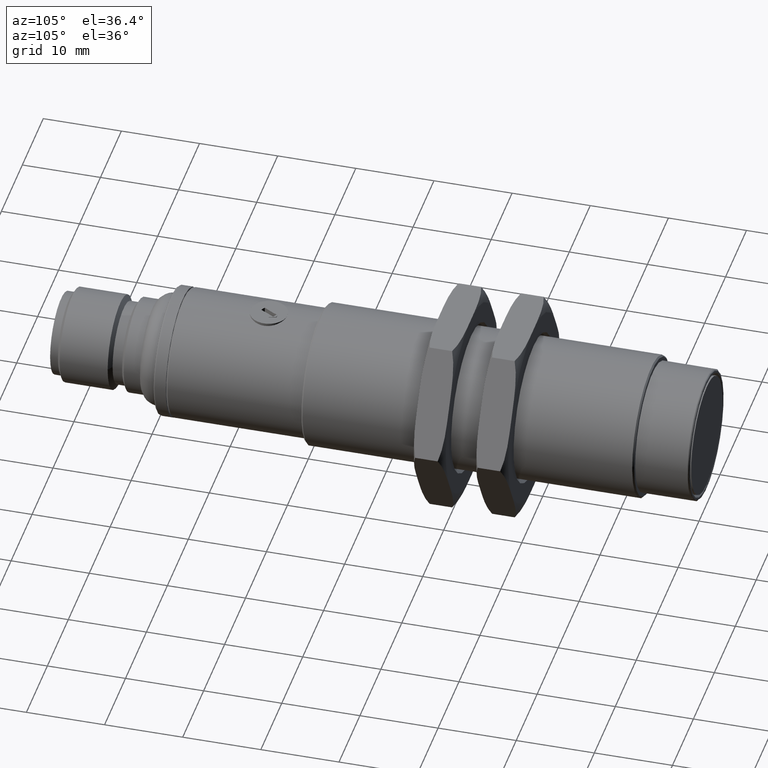
[diagram: clean part render]
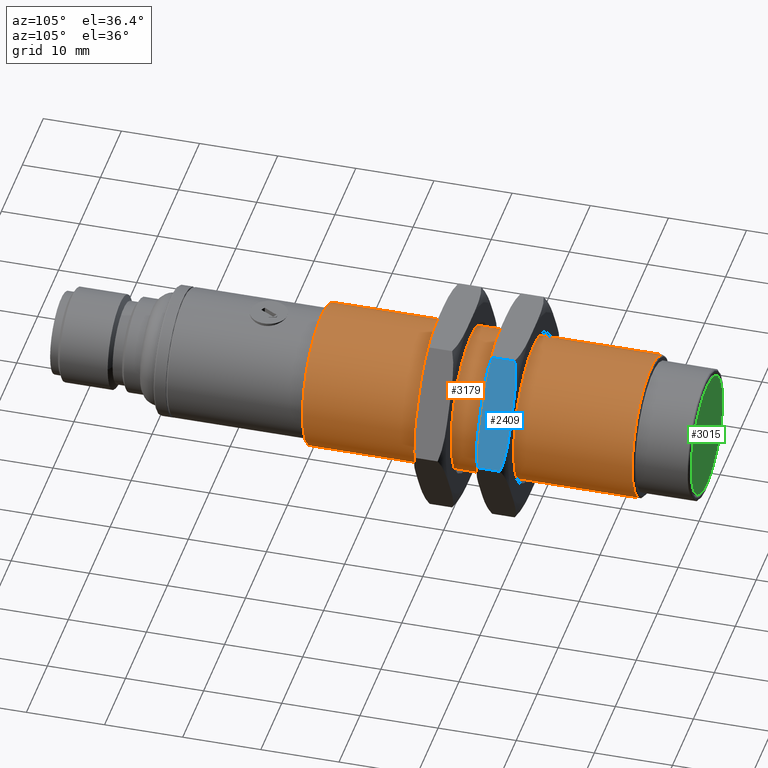
[diagram: same view with three faces highlighted in distinct colors, each labeled with its STEP entity id]
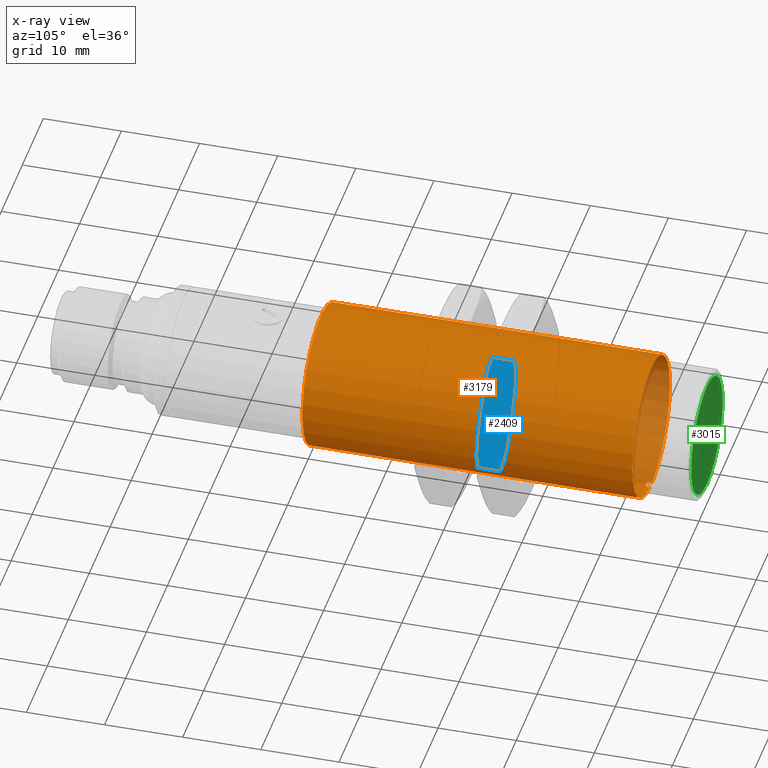
[diagram: x-ray of the same camera — body ghosted, the three highlighted faces saturated]
A machine part, auxiliary view with three faces highlighted in distinct colors.
The next image is the same camera in x-ray (body ghosted, the three faces saturated) — at least one of them is partly hidden behind the body in this view.
Their STEP definitions:

[orange] entity #3179 — the highlighted cylindrical surface (bore or boss wall) has radius 9 mm, axis along (0, -1, 0).
#22 = CARTESIAN_POINT ( 'NONE',  ( 0.008981041141015522547, 1.307729193887731345, -0.3576491620688194706 ) ) ;
#68 = CARTESIAN_POINT ( 'NONE',  ( 0.01968503937007874682, 1.323563115017905023, -0.3572159464473742552 ) ) ;
#89 = CARTESIAN_POINT ( 'NONE',  ( -0.01158786578451971409, 1.309187083590066969, -0.3575811814271229183 ) ) ;
#216 = ORIENTED_EDGE ( 'NONE', *, *, #2346, .F. ) ;
#267 = DIRECTION ( 'NONE',  ( 0.000000000000000000, 1.000000000000000000, 0.000000000000000000 ) ) ;
#276 = EDGE_LOOP ( 'NONE', ( #1751, #216, #2943, #1070 ) ) ;
#303 = CARTESIAN_POINT ( 'NONE',  ( -0.01942211342533483112, 1.321318941801316926, -0.3572387938557151643 ) ) ;
#343 = CARTESIAN_POINT ( 'NONE',  ( -0.01622819136906780702, 1.313819820143970807, -0.3573990476378300363 ) ) ;
#391 = CARTESIAN_POINT ( 'NONE',  ( -0.01968503937007873988, 1.325434263620417497, -0.3572159464473751989 ) ) ;
#405 = CARTESIAN_POINT ( 'NONE',  ( -0.004148976533887337517, 1.306159306171633672, -0.3577347956214805280 ) ) ;
#467 = AXIS2_PLACEMENT_3D ( 'NONE', #2447, #1495, #3175 ) ;
#471 = CARTESIAN_POINT ( 'NONE',  ( 0.01942189134938138162, 1.321319541225800531, -0.3572387573055963439 ) ) ;
#492 = CARTESIAN_POINT ( 'NONE',  ( -0.01968503937007873988, 1.333308279368448979, -0.3572159464473751989 ) ) ;
#522 = EDGE_LOOP ( 'NONE', ( #1835 ) ) ;
#555 = LINE ( 'NONE', #1933, #4444 ) ;
#556 = VERTEX_POINT ( 'NONE', #1859 ) ;
#668 = LINE ( 'NONE', #3769, #4049 ) ;
#692 = CIRCLE ( 'NONE', #980, 0.3543307086614173040 ) ;
#702 = CARTESIAN_POINT ( 'NONE',  ( -0.01968503937007874682, 1.323563663957743719, -0.3572159464473742552 ) ) ;
#843 = CARTESIAN_POINT ( 'NONE',  ( 0.000000000000000000, -1.024959437166984122, -0.003432467006205425306 ) ) ;
#865 = FACE_OUTER_BOUND ( 'NONE', #522, .T. ) ;
#928 = CARTESIAN_POINT ( 'NONE',  ( -0.01968503937007873988, 1.325434263620417497, -0.3572159464473751989 ) ) ;
#980 = AXIS2_PLACEMENT_3D ( 'NONE', #2911, #4229, #2179 ) ;
#1070 = ORIENTED_EDGE ( 'NONE', *, *, #2872, .T. ) ;
#1074 = CARTESIAN_POINT ( 'NONE',  ( 0.001991162446508606444, 1.305843505392969561, -0.3577560217940894960 ) ) ;
#1086 = CARTESIAN_POINT ( 'NONE',  ( 0.000000000000000000, -0.3281090434661976807, -0.3577631756676227237 ) ) ;
#1388 = CARTESIAN_POINT ( 'NONE',  ( -0.01770608974451939183, 1.316453798735993885, -0.3573301834890781903 ) ) ;
#1404 = CARTESIAN_POINT ( 'NONE',  ( 0.01770838776897524364, 1.316459086374505372, -0.3573300007384846433 ) ) ;
#1495 = DIRECTION ( 'NONE',  ( 0.000000000000000000, -1.000000000000000000, 0.000000000000000000 ) ) ;
#1692 = EDGE_CURVE ( 'NONE', #2625, #1830, #668, .T. ) ;
#1751 = ORIENTED_EDGE ( 'NONE', *, *, #1692, .F. ) ;
#1790 = CARTESIAN_POINT ( 'NONE',  ( 0.0009708111317245293140, 1.305766521971686078, -0.3577617335741002935 ) ) ;
#1830 = VERTEX_POINT ( 'NONE', #492 ) ;
#1831 = AXIS2_PLACEMENT_3D ( 'NONE', #843, #3807, #3285 ) ;
#1835 = ORIENTED_EDGE ( 'NONE', *, *, #4009, .T. ) ;
#1859 = CARTESIAN_POINT ( 'NONE',  ( 0.01968503937007873988, 1.333308279368448979, -0.3572159464473751989 ) ) ;
#1933 = CARTESIAN_POINT ( 'NONE',  ( 0.01968503937007873988, -1.024959437166984122, -0.3572159464473751989 ) ) ;
#2100 = CARTESIAN_POINT ( 'NONE',  ( 0.01968503937007873988, 1.325434263620417497, -0.3572159464473751989 ) ) ;
#2179 = DIRECTION ( 'NONE',  ( 0.000000000000000000, 0.000000000000000000, -1.000000000000000000 ) ) ;
#2346 = EDGE_CURVE ( 'NONE', #4343, #2625, #2420, .T. ) ;
#2420 = B_SPLINE_CURVE_WITH_KNOTS ( 'NONE', 3,
 ( #2100, #68, #471, #1404, #3113, #2786, #22, #2806, #4173, #3857, #1074, #1790, #2765, #2448, #4146, #3839, #3498, #405, #4196, #3176, #89, #343, #1388, #303, #702, #391 ),
 .UNSPECIFIED., .F., .F.,
 ( 4, 2, 2, 2, 2, 2, 2, 2, 2, 2, 2, 2, 4 ),
 ( 0.000000000000000000, 0.1250000000000049405, 0.2500000000000098255, 0.3750000000000147660, 0.4375000000000149325, 0.4687500000000150990, 0.5000000000000152101, 0.5312500000000153211, 0.5625000000000154321, 0.6250000000000132117, 0.7500000000000088818, 0.8750000000000044409, 1.000000000000000000 ),
 .UNSPECIFIED. ) ;
#2447 = CARTESIAN_POINT ( 'NONE',  ( 0.000000000000000000, 1.333308279368448979, -0.003432467006205425306 ) ) ;
#2448 = CARTESIAN_POINT ( 'NONE',  ( -0.0005099604225064173881, 1.305748869769080001, -0.3577631857769266177 ) ) ;
#2625 = VERTEX_POINT ( 'NONE', #928 ) ;
#2674 = EDGE_CURVE ( 'NONE', #556, #4343, #555, .T. ) ;
#2765 = CARTESIAN_POINT ( 'NONE',  ( 0.0005369695356207545515, 1.305749587996149819, -0.3577631650436251531 ) ) ;
#2786 = CARTESIAN_POINT ( 'NONE',  ( 0.01160095609343192273, 1.309196454485746619, -0.3575808059243241743 ) ) ;
#2806 = CARTESIAN_POINT ( 'NONE',  ( 0.005339640751987123277, 1.306443582578263429, -0.3577175367348786050 ) ) ;
#2808 = CARTESIAN_POINT ( 'NONE',  ( 0.01968503937007873988, 1.325434263620417497, -0.3572159464473751989 ) ) ;
#2872 = EDGE_CURVE ( 'NONE', #556, #1830, #3352, .T. ) ;
#2892 = CYLINDRICAL_SURFACE ( 'NONE', #1831, 0.3543307086614173040 ) ;
#2911 = CARTESIAN_POINT ( 'NONE',  ( 0.000000000000000000, -0.3281090434661976807, -0.003432467006205425306 ) ) ;
#2943 = ORIENTED_EDGE ( 'NONE', *, *, #2674, .F. ) ;
#3113 = CARTESIAN_POINT ( 'NONE',  ( 0.01623738665495099223, 1.313832716206673856, -0.3573985475677549095 ) ) ;
#3175 = DIRECTION ( 'NONE',  ( 0.000000000000000000, 0.000000000000000000, -1.000000000000000000 ) ) ;
#3176 = CARTESIAN_POINT ( 'NONE',  ( -0.008966101324162560268, 1.307721411850868209, -0.3576494699428014457 ) ) ;
#3179 = ADVANCED_FACE ( 'NONE', ( #3966, #865 ), #2892, .T. ) ;
#3285 = DIRECTION ( 'NONE',  ( 0.000000000000000000, 0.000000000000000000, 1.000000000000000000 ) ) ;
#3352 = CIRCLE ( 'NONE', #467, 0.3543307086614173040 ) ;
#3498 = CARTESIAN_POINT ( 'NONE',  ( -0.002500673274115515141, 1.305900786916049716, -0.3577518444397874142 ) ) ;
#3769 = CARTESIAN_POINT ( 'NONE',  ( -0.01968503937007873988, -1.024959437166984122, -0.3572159464473751989 ) ) ;
#3807 = DIRECTION ( 'NONE',  ( 0.000000000000000000, -1.000000000000000000, 0.000000000000000000 ) ) ;
#3839 = CARTESIAN_POINT ( 'NONE',  ( -0.001969354804067728615, 1.305841285180421529, -0.3577561037305370673 ) ) ;
#3857 = CARTESIAN_POINT ( 'NONE',  ( 0.002521846983355031848, 1.305903524303472452, -0.3577517425894720660 ) ) ;
#3966 = FACE_OUTER_BOUND ( 'NONE', #276, .T. ) ;
#4009 = EDGE_CURVE ( 'NONE', #4189, #4189, #692, .T. ) ;
#4049 = VECTOR ( 'NONE', #267, 39.37007874015748143 ) ;
#4146 = CARTESIAN_POINT ( 'NONE',  ( -0.0009476952866003539354, 1.305765378645965313, -0.3577617750146663278 ) ) ;
#4173 = CARTESIAN_POINT ( 'NONE',  ( 0.004168307404295182837, 1.306163538406394986, -0.3577346350317844315 ) ) ;
#4189 = VERTEX_POINT ( 'NONE', #1086 ) ;
#4196 = CARTESIAN_POINT ( 'NONE',  ( -0.005321458811745038639, 1.306438430391592131, -0.3577177351478673661 ) ) ;
#4229 = DIRECTION ( 'NONE',  ( 0.000000000000000000, 1.000000000000000000, 0.000000000000000000 ) ) ;
#4300 = DIRECTION ( 'NONE',  ( 0.000000000000000000, -1.000000000000000000, 0.000000000000000000 ) ) ;
#4343 = VERTEX_POINT ( 'NONE', #2808 ) ;
#4444 = VECTOR ( 'NONE', #4300, 39.37007874015748143 ) ;

[blue] entity #2409 — the highlighted planar face has unit normal (-0.866, 0, -0.5).
#10 = CARTESIAN_POINT ( 'NONE',  ( 0.2727639067037606613, 0.6055979978517874729, 0.4690084778756850592 ) ) ;
#20 = CARTESIAN_POINT ( 'NONE',  ( 0.4945529063541782011, 0.7375350159479499013, 0.08485245514056458105 ) ) ;
#39 = CARTESIAN_POINT ( 'NONE',  ( 0.2727639067037606613, 0.5837019801558496201, 0.4690084778756850592 ) ) ;
#49 = CARTESIAN_POINT ( 'NONE',  ( 0.4868542953548916086, 0.5863220239087953978, 0.09819309166706367831 ) ) ;
#70 = CARTESIAN_POINT ( 'NONE',  ( 0.4219856141839251618, 0.5837019801558496201, 0.2105488989278574974 ) ) ;
#83 = LINE ( 'NONE', #39, #294 ) ;
#100 = CARTESIAN_POINT ( 'NONE',  ( 0.3963061059273551567, 0.5837019801558496201, 0.2550271119416216425 ) ) ;
#188 = CARTESIAN_POINT ( 'NONE',  ( 0.4815065621962686948, 0.7391621081263093362, 0.1074556373146035720 ) ) ;
#219 = CARTESIAN_POINT ( 'NONE',  ( 0.3963061059273551567, 0.7411822951164803719, 0.2550271119416216425 ) ) ;
#279 = CARTESIAN_POINT ( 'NONE',  ( 0.3082100704245736567, 0.7343635956374537921, 0.4076138265380773729 ) ) ;
#288 = CARTESIAN_POINT ( 'NONE',  ( 0.3058295521970570974, 0.5912498041368329238, 0.4117365798857426373 ) ) ;
#294 = VECTOR ( 'NONE', #1440, 39.37007874015748143 ) ;
#298 = CARTESIAN_POINT ( 'NONE',  ( 0.3134593319716315607, 0.5893465124402441635, 0.3985169311798726910 ) ) ;
#319 = CARTESIAN_POINT ( 'NONE',  ( 0.5157645197187045172, 0.5921980278925683683, 0.04811908171844078708 ) ) ;
#341 = CARTESIAN_POINT ( 'NONE',  ( 0.5177759159769748099, 0.5928184258622769542, 0.04463466902182384316 ) ) ;
#360 = CARTESIAN_POINT ( 'NONE',  ( 0.5358723219414458505, 0.7254163825881371208, 0.01329133478508335263 ) ) ;
#366 = CARTESIAN_POINT ( 'NONE',  ( 0.4972662276606247822, 0.5878592852777478894, 0.08015289280999764177 ) ) ;
#385 = CARTESIAN_POINT ( 'NONE',  ( 0.3756030433006050662, 0.5837749018679506685, 0.2908860388691391075 ) ) ;
#411 = FACE_OUTER_BOUND ( 'NONE', #4314, .T. ) ;
#456 = CARTESIAN_POINT ( 'NONE',  ( 0.3160188940497266064, 0.5888052798383225372, 0.3940824668995898117 ) ) ;
#506 = CARTESIAN_POINT ( 'NONE',  ( 0.5455278134075204344, 0.5837019801558496201, -0.003432467006205287829 ) ) ;
#594 = CARTESIAN_POINT ( 'NONE',  ( 0.4712162911145685307, 0.7400166277085793443, 0.1252734585688026481 ) ) ;
#620 = CARTESIAN_POINT ( 'NONE',  ( 0.2727639067037594400, 0.7192862774205412979, 0.4690084778756850592 ) ) ;
#627 = B_SPLINE_CURVE_WITH_KNOTS ( 'NONE', 3,
 ( #1013, #2768, #2728, #2750, #1728, #1428, #3137, #341, #1406, #319, #1750, #3116, #366, #2359, #1685, #49, #1774, #1367, #1078, #3410, #70 ),
 .UNSPECIFIED., .F., .F.,
 ( 4, 2, 2, 1, 2, 2, 2, 2, 2, 2, 4 ),
 ( 0.000000000000000000, 0.1250000000000015266, 0.1875000000000024147, 0.2187500000000031086, 0.2343750000000032196, 0.2500000000000033307, 0.3750000000000028866, 0.4375000000000027200, 0.5000000000000025535, 0.7500000000000013323, 1.000000000000000000 ),
 .UNSPECIFIED. ) ;
#708 = CARTESIAN_POINT ( 'NONE',  ( 0.2824193981670035103, 0.5994678926859894341, 0.4522846760893009521 ) ) ;
#787 = CARTESIAN_POINT ( 'NONE',  ( 0.5455278134075204344, 0.6055979978517874729, -0.003432467006205287829 ) ) ;
#873 = CARTESIAN_POINT ( 'NONE',  ( 0.5455278134075204344, 0.5837019801558496201, -0.003432467006205287829 ) ) ;
#882 = CARTESIAN_POINT ( 'NONE',  ( 0.3963061059273551567, 0.7411822951164803719, 0.2550271119416216425 ) ) ;
#884 = CARTESIAN_POINT ( 'NONE',  ( 0.3096370786818485321, 0.5902547569720171250, 0.4051396005441521009 ) ) ;
#899 = EDGE_CURVE ( 'NONE', #3138, #4152, #1144, .T. ) ;
#934 = CARTESIAN_POINT ( 'NONE',  ( 0.3547122329688803255, 0.7405382644894431543, 0.3270699860644659118 ) ) ;
#955 = CARTESIAN_POINT ( 'NONE',  ( 0.3005153188761338634, 0.7320658494101771607, 0.4209410616830405738 ) ) ;
#965 = CARTESIAN_POINT ( 'NONE',  ( 0.4219856141843661979, 0.7411822951164803719, 0.2105488989270953015 ) ) ;
#986 = CARTESIAN_POINT ( 'NONE',  ( 0.3039661227261765686, 0.5917741640575062689, 0.4149646668984625641 ) ) ;
#995 = ORIENTED_EDGE ( 'NONE', *, *, #4238, .F. ) ;
#1013 = CARTESIAN_POINT ( 'NONE',  ( 0.5455278134075204344, 0.6055979978517874729, -0.003432467006205287829 ) ) ;
#1078 = CARTESIAN_POINT ( 'NONE',  ( 0.4427239128168843907, 0.5837748558054904890, 0.1746289391559840143 ) ) ;
#1144 = B_SPLINE_CURVE_WITH_KNOTS ( 'NONE', 3,
 ( #3476, #1365, #385, #2015, #2787, #3755, #2449, #2228, #2933, #4226, #4325, #456, #298, #884, #4082, #288, #2350, #986, #3749, #708, #10 ),
 .UNSPECIFIED., .F., .F.,
 ( 4, 2, 2, 2, 2, 2, 2, 1, 2, 2, 4 ),
 ( 0.000000000000000000, 0.2500000000000021094, 0.3750000000000028311, 0.4375000000000034972, 0.5000000000000042188, 0.6250000000000063283, 0.6875000000000068834, 0.7187500000000071054, 0.7343750000000073275, 0.7500000000000075495, 1.000000000000000000 ),
 .UNSPECIFIED. ) ;
#1149 = PLANE ( 'NONE',  #2982 ) ;
#1227 = ORIENTED_EDGE ( 'NONE', *, *, #1393, .T. ) ;
#1256 = ORIENTED_EDGE ( 'NONE', *, *, #3238, .F. ) ;
#1263 = EDGE_CURVE ( 'NONE', #1533, #3425, #3795, .T. ) ;
#1285 = CARTESIAN_POINT ( 'NONE',  ( 0.3210201588168474784, 0.7370249899947474148, 0.3854200386819613966 ) ) ;
#1317 = CARTESIAN_POINT ( 'NONE',  ( 0.5022674781720044557, 0.7360789954337346730, 0.07149045636352641120 ) ) ;
#1322 = LINE ( 'NONE', #2710, #2845 ) ;
#1365 = CARTESIAN_POINT ( 'NONE',  ( 0.3859213302361854669, 0.5837265330843434130, 0.2730140710639355484 ) ) ;
#1367 = CARTESIAN_POINT ( 'NONE',  ( 0.4635796368539995549, 0.5843460107828573058, 0.1385061112491718094 ) ) ;
#1393 = EDGE_CURVE ( 'NONE', #3495, #3425, #1543, .T. ) ;
#1406 = CARTESIAN_POINT ( 'NONE',  ( 0.5164571854051059896, 0.5924077644940338727, 0.04691922073108191482 ) ) ;
#1428 = CARTESIAN_POINT ( 'NONE',  ( 0.5217052814011683415, 0.5941250142596676831, 0.03782648840860731998 ) ) ;
#1440 = DIRECTION ( 'NONE',  ( 0.000000000000000000, 1.000000000000000000, 0.000000000000000000 ) ) ;
#1452 = DIRECTION ( 'NONE',  ( -0.4999999999999998890, 0.000000000000000000, 0.8660254037844388186 ) ) ;
#1533 = VERTEX_POINT ( 'NONE', #4352 ) ;
#1543 = LINE ( 'NONE', #873, #2670 ) ;
#1606 = CARTESIAN_POINT ( 'NONE',  ( 0.3025272106592088450, 0.7326862473797414177, 0.4174569350787007416 ) ) ;
#1626 = CARTESIAN_POINT ( 'NONE',  ( 0.2727639067037606613, 0.6055979978517874729, 0.4690084778756850592 ) ) ;
#1630 = CARTESIAN_POINT ( 'NONE',  ( 0.3859001054617975934, 0.7411576920058358109, 0.2730508334515523439 ) ) ;
#1660 = CARTESIAN_POINT ( 'NONE',  ( 0.5086523291169738892, 0.7346295183000984830, 0.06043507531043380149 ) ) ;
#1685 = CARTESIAN_POINT ( 'NONE',  ( 0.4894936963480771008, 0.5866610083348765547, 0.09361961067214102927 ) ) ;
#1722 = CARTESIAN_POINT ( 'NONE',  ( 0.5048280558517702632, 0.7355377628318195971, 0.06705657844119915223 ) ) ;
#1728 = CARTESIAN_POINT ( 'NONE',  ( 0.5255969649748064576, 0.5955403121317831561, 0.03108337008173055541 ) ) ;
#1736 = EDGE_CURVE ( 'NONE', #4152, #1917, #83, .T. ) ;
#1750 = CARTESIAN_POINT ( 'NONE',  ( 0.5100815675536507499, 0.5905206796350306320, 0.05796213691009764746 ) ) ;
#1757 = CARTESIAN_POINT ( 'NONE',  ( 0.5455278134075204344, 0.5837019801558496201, -0.003432467006205287829 ) ) ;
#1774 = CARTESIAN_POINT ( 'NONE',  ( 0.4739119591985562208, 0.5848665587910701902, 0.1206096537219497888 ) ) ;
#1777 = DIRECTION ( 'NONE',  ( -0.8660254037844388186, 0.000000000000000000, -0.4999999999999998890 ) ) ;
#1848 = ORIENTED_EDGE ( 'NONE', *, *, #3821, .T. ) ;
#1913 = VECTOR ( 'NONE', #3781, 39.37007874015748854 ) ;
#1917 = VERTEX_POINT ( 'NONE', #620 ) ;
#1921 = CARTESIAN_POINT ( 'NONE',  ( 0.3236039992945147215, 0.7374564644519344681, 0.3809458908879356231 ) ) ;
#1941 = CARTESIAN_POINT ( 'NONE',  ( 0.3018344334065737877, 0.7324765107783590690, 0.4186567316526894622 ) ) ;
#1956 = CARTESIAN_POINT ( 'NONE',  ( 0.4737984471334386050, 0.7398353485115465311, 0.1208020462447691734 ) ) ;
#1964 = CARTESIAN_POINT ( 'NONE',  ( 0.2775697745429430707, 0.7223374401064873718, 0.4606844706037578341 ) ) ;
#2015 = CARTESIAN_POINT ( 'NONE',  ( 0.3600003895847298518, 0.5842006841195797051, 0.3179103719593813215 ) ) ;
#2030 = CARTESIAN_POINT ( 'NONE',  ( 0.5455278134075196572, 0.7192862774205412979, -0.003432467006204331129 ) ) ;
#2051 = ORIENTED_EDGE ( 'NONE', *, *, #899, .F. ) ;
#2139 = ORIENTED_EDGE ( 'NONE', *, *, #1263, .F. ) ;
#2228 = CARTESIAN_POINT ( 'NONE',  ( 0.3393277999939396383, 0.5854782990748745863, 0.3537147612138256125 ) ) ;
#2259 = CARTESIAN_POINT ( 'NONE',  ( 0.3133049372960112766, 0.7355624588084355153, 0.3987830881907281078 ) ) ;
#2292 = CARTESIAN_POINT ( 'NONE',  ( 0.4582912566612207805, 0.7406835911527540617, 0.1476655962621008789 ) ) ;
#2294 = ORIENTED_EDGE ( 'NONE', *, *, #1736, .F. ) ;
#2301 = CARTESIAN_POINT ( 'NONE',  ( 0.2901232254573146152, 0.7283157917265113968, 0.4389345736917847907 ) ) ;
#2319 = CARTESIAN_POINT ( 'NONE',  ( 0.3287964129342210717, 0.7382232669375329293, 0.3719554701832847865 ) ) ;
#2331 = CARTESIAN_POINT ( 'NONE',  ( 0.4426888245423268864, 0.7411093734043415759, 0.1746900572946183117 ) ) ;
#2350 = CARTESIAN_POINT ( 'NONE',  ( 0.3045637917121922222, 0.5916031973834459112, 0.4139293529539260219 ) ) ;
#2359 = CARTESIAN_POINT ( 'NONE',  ( 0.4946834222494832511, 0.5874278108205377436, 0.08462763820018456840 ) ) ;
#2409 = ADVANCED_FACE ( 'NONE', ( #411 ), #1149, .F. ) ;
#2449 = CARTESIAN_POINT ( 'NONE',  ( 0.3444894680703374790, 0.5850489267608052213, 0.3447717678582493117 ) ) ;
#2451 = DIRECTION ( 'NONE',  ( -0.4999999999999998335, 0.000000000000000000, 0.8660254037844385966 ) ) ;
#2632 = CARTESIAN_POINT ( 'NONE',  ( 0.3443796072926370022, 0.7400177164816500452, 0.3449662684468911555 ) ) ;
#2653 = CARTESIAN_POINT ( 'NONE',  ( 0.3314374631614103728, 0.7385622513634351183, 0.3673829413775771546 ) ) ;
#2665 = VERTEX_POINT ( 'NONE', #882 ) ;
#2670 = VECTOR ( 'NONE', #2922, 39.37007874015748143 ) ;
#2705 = CARTESIAN_POINT ( 'NONE',  ( 0.5256487635706347250, 0.7297808984703664237, 0.03099885759803860594 ) ) ;
#2710 = CARTESIAN_POINT ( 'NONE',  ( 0.5455278134075204344, 0.7411822951164803719, -0.003432467006205287829 ) ) ;
#2728 = CARTESIAN_POINT ( 'NONE',  ( 0.5357696420934465742, 0.5999320261899290241, 0.01346245781362170706 ) ) ;
#2746 = CARTESIAN_POINT ( 'NONE',  ( 0.4893670470516513493, 0.7382826276581714309, 0.09384074479658177648 ) ) ;
#2750 = CARTESIAN_POINT ( 'NONE',  ( 0.5281627077712002238, 0.5965684835462997659, 0.02663809611714108502 ) ) ;
#2768 = CARTESIAN_POINT ( 'NONE',  ( 0.5407219455689865617, 0.6025468351662536248, 0.004891540264596492063 ) ) ;
#2772 = LINE ( 'NONE', #1757, #1913 ) ;
#2787 = CARTESIAN_POINT ( 'NONE',  ( 0.3548222021629844347, 0.5844038791744519123, 0.3268739433818865781 ) ) ;
#2845 = VECTOR ( 'NONE', #2451, 39.37007874015748854 ) ;
#2922 = DIRECTION ( 'NONE',  ( 0.000000000000000000, 1.000000000000000000, 0.000000000000000000 ) ) ;
#2933 = CARTESIAN_POINT ( 'NONE',  ( 0.3367851964178420476, 0.5857221671460506318, 0.3581203957841276320 ) ) ;
#2950 = CARTESIAN_POINT ( 'NONE',  ( 0.4219856141839251618, 0.5837019801558496201, 0.2105488989278574974 ) ) ;
#2982 = AXIS2_PLACEMENT_3D ( 'NONE', #506, #1777, #1452 ) ;
#3116 = CARTESIAN_POINT ( 'NONE',  ( 0.5049813572467668488, 0.5893218164640871004, 0.06678979022269193599 ) ) ;
#3132 = CARTESIAN_POINT ( 'NONE',  ( 0.5143256081954691306, 0.7331101112147183629, 0.05061135021172141063 ) ) ;
#3137 = CARTESIAN_POINT ( 'NONE',  ( 0.5197486410813976221, 0.5934491019638850062, 0.04121686380215965062 ) ) ;
#3138 = VERTEX_POINT ( 'NONE', #100 ) ;
#3238 = EDGE_CURVE ( 'NONE', #1917, #2665, #3399, .T. ) ;
#3274 = CARTESIAN_POINT ( 'NONE',  ( 0.4789624725269812089, 0.7394059761974630662, 0.1118604138874726012 ) ) ;
#3340 = EDGE_CURVE ( 'NONE', #4437, #3138, #2772, .T. ) ;
#3374 = CARTESIAN_POINT ( 'NONE',  ( 0.2825162551365924535, 0.7249522490829389820, 0.4521101912115614851 ) ) ;
#3399 = B_SPLINE_CURVE_WITH_KNOTS ( 'NONE', 3,
 ( #3716, #1964, #3374, #2301, #4354, #3990, #3659, #955, #1941, #1606, #279, #2259, #1285, #1921, #2319, #2653, #2632, #934, #4011, #1630, #219 ),
 .UNSPECIFIED., .F., .F.,
 ( 4, 2, 2, 1, 2, 2, 2, 2, 2, 2, 4 ),
 ( 0.000000000000000000, 0.1249999999999994171, 0.1874999999999986122, 0.2187499999999986677, 0.2343749999999988343, 0.2499999999999989453, 0.3749999999999996669, 0.4375000000000000555, 0.5000000000000004441, 0.7500000000000000000, 1.000000000000000000 ),
 .UNSPECIFIED. ) ;
#3410 = CARTESIAN_POINT ( 'NONE',  ( 0.4323916146529764859, 0.5837265832665009535, 0.1925251774118762471 ) ) ;
#3425 = VERTEX_POINT ( 'NONE', #3436 ) ;
#3436 = CARTESIAN_POINT ( 'NONE',  ( 0.5455278134075196572, 0.7192862774205412979, -0.003432467006204331129 ) ) ;
#3476 = CARTESIAN_POINT ( 'NONE',  ( 0.3963061059273551567, 0.5837019801558496201, 0.2550271119416216425 ) ) ;
#3495 = VERTEX_POINT ( 'NONE', #787 ) ;
#3659 = CARTESIAN_POINT ( 'NONE',  ( 0.2985417752830766824, 0.7314351733086572604, 0.4243583943476211817 ) ) ;
#3688 = CARTESIAN_POINT ( 'NONE',  ( 0.4634648435108624231, 0.7404803960978968425, 0.1386993686975565021 ) ) ;
#3716 = CARTESIAN_POINT ( 'NONE',  ( 0.2727639067037594400, 0.7192862774205412979, 0.4690084778756850592 ) ) ;
#3749 = CARTESIAN_POINT ( 'NONE',  ( 0.2926427835766666208, 0.5951033768030806748, 0.4345770534169480781 ) ) ;
#3752 = CARTESIAN_POINT ( 'NONE',  ( 0.5124617175723097384, 0.7336344711353742776, 0.05383917097826551590 ) ) ;
#3755 = CARTESIAN_POINT ( 'NONE',  ( 0.3470707467244168454, 0.5848676475637744065, 0.3402998489872560706 ) ) ;
#3771 = CARTESIAN_POINT ( 'NONE',  ( 0.5105602915002078745, 0.7341512882487203351, 0.05713166035739835474 ) ) ;
#3781 = DIRECTION ( 'NONE',  ( -0.4999999999999998335, 0.000000000000000000, 0.8660254037844385966 ) ) ;
#3795 = B_SPLINE_CURVE_WITH_KNOTS ( 'NONE', 3,
 ( #965, #4002, #2331, #2292, #3688, #594, #1956, #3274, #188, #2746, #20, #1317, #1722, #1660, #3771, #3752, #4431, #3132, #2705, #360, #2030 ),
 .UNSPECIFIED., .F., .F.,
 ( 4, 2, 2, 2, 2, 2, 2, 1, 2, 2, 4 ),
 ( 0.000000000000000000, 0.2500000000000005551, 0.3750000000000008327, 0.4375000000000008327, 0.5000000000000008882, 0.6250000000000004441, 0.6875000000000004441, 0.7187500000000005551, 0.7343750000000005551, 0.7500000000000004441, 1.000000000000000000 ),
 .UNSPECIFIED. ) ;
#3821 = EDGE_CURVE ( 'NONE', #1533, #2665, #1322, .T. ) ;
#3990 = CARTESIAN_POINT ( 'NONE',  ( 0.2965839442239056045, 0.7307592610129511890, 0.4277480822671112515 ) ) ;
#4002 = CARTESIAN_POINT ( 'NONE',  ( 0.4323703898724844397, 0.7411577421879907979, 0.1925619398100672786 ) ) ;
#4011 = CARTESIAN_POINT ( 'NONE',  ( 0.3755676575827958108, 0.7411094194668663704, 0.2909469852693395420 ) ) ;
#4082 = CARTESIAN_POINT ( 'NONE',  ( 0.3077302186049538646, 0.5907329870234316882, 0.4084436519141484978 ) ) ;
#4152 = VERTEX_POINT ( 'NONE', #1626 ) ;
#4226 = CARTESIAN_POINT ( 'NONE',  ( 0.3289245960546242631, 0.5866016476140217817, 0.3717352216132568943 ) ) ;
#4238 = EDGE_CURVE ( 'NONE', #3495, #4437, #627, .T. ) ;
#4246 = ORIENTED_EDGE ( 'NONE', *, *, #3340, .F. ) ;
#4314 = EDGE_LOOP ( 'NONE', ( #2139, #1848, #1256, #2294, #2051, #4246, #995, #1227 ) ) ;
#4325 = CARTESIAN_POINT ( 'NONE',  ( 0.3237334385270631554, 0.5873492593241448345, 0.3807204523374721483 ) ) ;
#4352 = CARTESIAN_POINT ( 'NONE',  ( 0.4219856141843661979, 0.7411822951164803719, 0.2105488989270953015 ) ) ;
#4354 = CARTESIAN_POINT ( 'NONE',  ( 0.2926900742391393972, 0.7293439631409676105, 0.4344899382683730660 ) ) ;
#4431 = CARTESIAN_POINT ( 'NONE',  ( 0.5137278345115279254, 0.7332810778888025904, 0.05164660370919088583 ) ) ;
#4437 = VERTEX_POINT ( 'NONE', #2950 ) ;

[green] entity #3015 — the highlighted planar face has unit normal (0, 1, 0).
#17 = EDGE_CURVE ( 'NONE', #3978, #3978, #2731, .T. ) ;
#28 = DIRECTION ( 'NONE',  ( 0.000000000000000000, 1.000000000000000000, 0.000000000000000000 ) ) ;
#367 = CARTESIAN_POINT ( 'NONE',  ( -4.171253447929055541E-27, 1.614804342360572686, -0.003432467006204528021 ) ) ;
#510 = AXIS2_PLACEMENT_3D ( 'NONE', #367, #28, #2769 ) ;
#1516 = AXIS2_PLACEMENT_3D ( 'NONE', #2637, #3952, #3643 ) ;
#1905 = FACE_OUTER_BOUND ( 'NONE', #2256, .T. ) ;
#2256 = EDGE_LOOP ( 'NONE', ( #3989 ) ) ;
#2637 = CARTESIAN_POINT ( 'NONE',  ( -2.952755905511334343E-15, 1.614804342360572686, -0.2987080575569208696 ) ) ;
#2731 = CIRCLE ( 'NONE', #510, 0.2952755905507165601 ) ;
#2769 = DIRECTION ( 'NONE',  ( 9.999999999999999988E-15, 0.000000000000000000, 1.000000000000000000 ) ) ;
#2971 = CARTESIAN_POINT ( 'NONE',  ( 2.952755905502994111E-15, 1.614804342360572686, 0.2918431235445120286 ) ) ;
#3015 = ADVANCED_FACE ( 'NONE', ( #1905 ), #3315, .T. ) ;
#3315 = PLANE ( 'NONE',  #1516 ) ;
#3643 = DIRECTION ( 'NONE',  ( 0.000000000000000000, 1.836970198720939462E-16, -1.000000000000000000 ) ) ;
#3952 = DIRECTION ( 'NONE',  ( 1.836970198720940189E-30, 1.000000000000000000, 1.836970198720939462E-16 ) ) ;
#3978 = VERTEX_POINT ( 'NONE', #2971 ) ;
#3989 = ORIENTED_EDGE ( 'NONE', *, *, #17, .T. ) ;